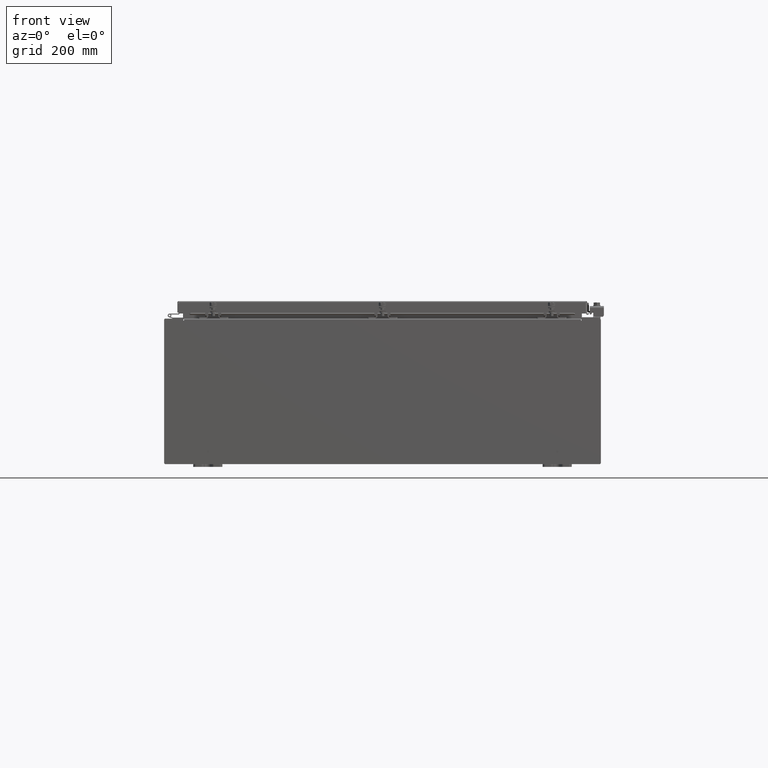
[diagram: clean part render]
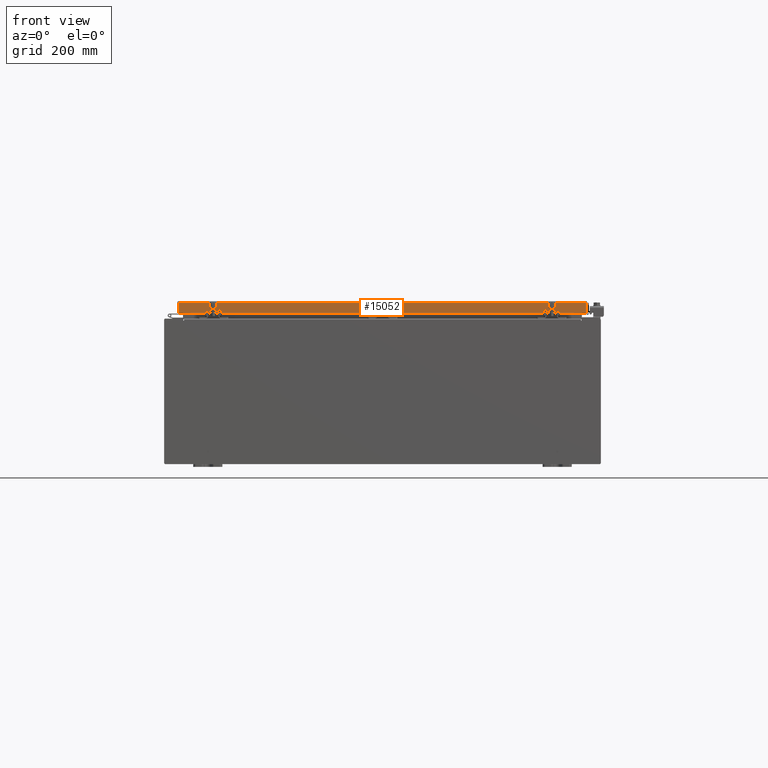
[diagram: same view with one face highlighted and labeled with its STEP entity id]
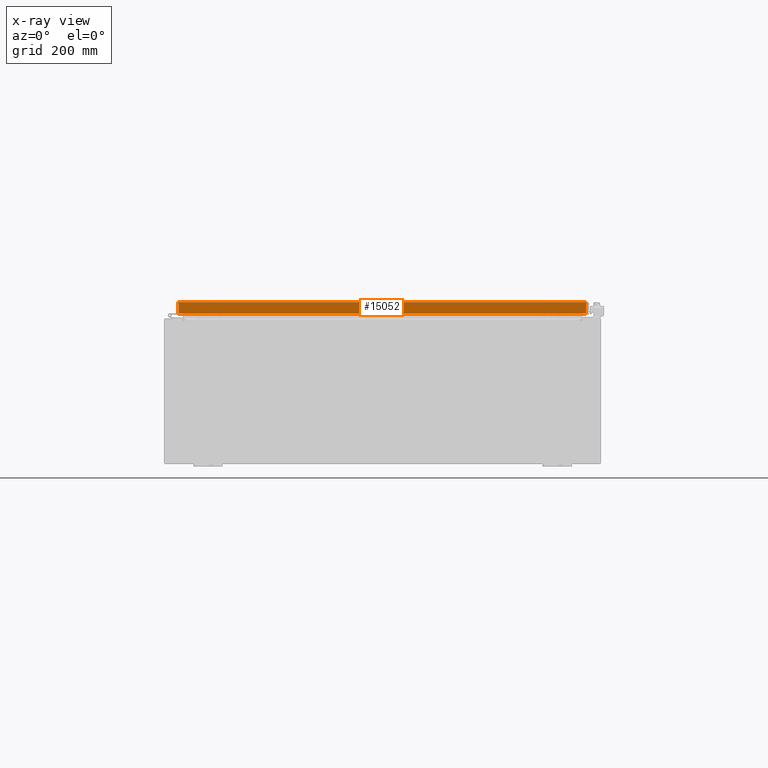
[diagram: x-ray of the same camera — body ghosted, the highlighted face saturated]
A machine part, front view. The second image highlights one B-rep face of the part: STEP entity #15052.
The next image is the same camera in x-ray: the body ghosted, the highlighted face saturated — about 0% of this face is hidden behind the body in this view.
In plain terms, the highlighted planar face has unit normal (-0, 1, -0).
Its self-contained STEP definition (entity closure, byte-faithful):
#221 = DIRECTION ( 'NONE',  ( -0.0000000000000000000, -2.818880942772360100E-015, -1.000000000000000000 ) ) ;
#792 = VERTEX_POINT ( 'NONE', #42900 ) ;
#847 = CARTESIAN_POINT ( 'NONE',  ( 13.98915786437626400, -17.09400000000000100, -0.07469999999999978000 ) ) ;
#927 = EDGE_CURVE ( 'NONE', #14699, #9109, #34592, .T. ) ;
#960 = DIRECTION ( 'NONE',  ( -1.000000000000000000, 4.379057701015054300E-047, 1.212817869044015600E-016 ) ) ;
#999 = ORIENTED_EDGE ( 'NONE', *, *, #23475, .F. ) ;
#1059 = CARTESIAN_POINT ( 'NONE',  ( 14.07799999999999400, -17.09400000000000100, -0.8499999999999996400 ) ) ;
#1166 = LINE ( 'NONE', #12953, #17853 ) ;
#1705 = EDGE_LOOP ( 'NONE', ( #42838, #20689, #4385, #42897, #999, #6655 ) ) ;
#2466 = DIRECTION ( 'NONE',  ( 1.000000000000000000, 3.418789178101959700E-031, -9.318824769679573900E-046 ) ) ;
#2714 = AXIS2_PLACEMENT_3D ( 'NONE', #36402, #35882, #35831 ) ;
#3606 = EDGE_CURVE ( 'NONE', #9109, #12663, #13993, .T. ) ;
#4385 = ORIENTED_EDGE ( 'NONE', *, *, #17585, .F. ) ;
#4687 = CARTESIAN_POINT ( 'NONE',  ( 14.07799999999999400, -17.09400000000000100, -0.08770000000000007000 ) ) ;
#5605 = CARTESIAN_POINT ( 'NONE',  ( -13.98915786437627600, -17.09400000000000100, 4.844676449176230700E-014 ) ) ;
#5662 = DIRECTION ( 'NONE',  ( 0.0000000000000000000, -2.818880942772360100E-015, -1.000000000000000000 ) ) ;
#5900 = LINE ( 'NONE', #5605, #22584 ) ;
#6655 = ORIENTED_EDGE ( 'NONE', *, *, #3606, .F. ) ;
#7539 = CARTESIAN_POINT ( 'NONE',  ( -13.98915786437627800, -17.09400000000000100, -0.08770000000000007000 ) ) ;
#7948 = VECTOR ( 'NONE', #2466, 39.37007874015748100 ) ;
#9109 = VERTEX_POINT ( 'NONE', #39069 ) ;
#9245 = LINE ( 'NONE', #1059, #35910 ) ;
#9818 = VERTEX_POINT ( 'NONE', #24240 ) ;
#9989 = FACE_OUTER_BOUND ( 'NONE', #1705, .T. ) ;
#12663 = VERTEX_POINT ( 'NONE', #21958 ) ;
#12953 = CARTESIAN_POINT ( 'NONE',  ( 13.23915786437626000, -17.09399999999999800, -0.8500000000000006400 ) ) ;
#13993 = LINE ( 'NONE', #847, #39569 ) ;
#14699 = VERTEX_POINT ( 'NONE', #7539 ) ;
#14773 = EDGE_CURVE ( 'NONE', #14699, #792, #5900, .T. ) ;
#15052 = ADVANCED_FACE ( 'NONE', ( #9989 ), #37659, .F. ) ;
#17145 = LINE ( 'NONE', #38547, #34873 ) ;
#17585 = EDGE_CURVE ( 'NONE', #9818, #792, #9245, .T. ) ;
#17853 = VECTOR ( 'NONE', #19665, 39.37007874015748100 ) ;
#19665 = DIRECTION ( 'NONE',  ( -1.000000000000000000, 0.0000000000000000000, 0.0000000000000000000 ) ) ;
#20689 = ORIENTED_EDGE ( 'NONE', *, *, #14773, .T. ) ;
#21958 = CARTESIAN_POINT ( 'NONE',  ( 13.98915786437626400, -17.09400000000000100, -0.8499999999999996400 ) ) ;
#22584 = VECTOR ( 'NONE', #5662, 39.37007874015748100 ) ;
#23475 = EDGE_CURVE ( 'NONE', #12663, #32418, #17145, .T. ) ;
#24240 = CARTESIAN_POINT ( 'NONE',  ( -13.23915786437627800, -17.09399999999999800, -0.8500000000000006400 ) ) ;
#25281 = DIRECTION ( 'NONE',  ( -1.000000000000000000, 4.379057701015054300E-047, 1.212817869044015600E-016 ) ) ;
#28753 = EDGE_CURVE ( 'NONE', #32418, #9818, #1166, .T. ) ;
#32418 = VERTEX_POINT ( 'NONE', #34599 ) ;
#34592 = LINE ( 'NONE', #4687, #7948 ) ;
#34599 = CARTESIAN_POINT ( 'NONE',  ( 13.23915786437626000, -17.09399999999999800, -0.8500000000000006400 ) ) ;
#34873 = VECTOR ( 'NONE', #25281, 39.37007874015748100 ) ;
#35831 = DIRECTION ( 'NONE',  ( 0.0000000000000000000, 2.818880942772360100E-015, 1.000000000000000000 ) ) ;
#35882 = DIRECTION ( 'NONE',  ( -3.418789178101958800E-031, 1.000000000000000000, -2.818880942772360100E-015 ) ) ;
#35910 = VECTOR ( 'NONE', #960, 39.37007874015748100 ) ;
#36402 = CARTESIAN_POINT ( 'NONE',  ( 5.844078221047488100E-030, -17.09400000000000100, 4.844676449176230700E-014 ) ) ;
#37659 = PLANE ( 'NONE',  #2714 ) ;
#38547 = CARTESIAN_POINT ( 'NONE',  ( 14.07799999999999400, -17.09400000000000100, -0.8499999999999996400 ) ) ;
#39069 = CARTESIAN_POINT ( 'NONE',  ( 13.98915786437626500, -17.09400000000000100, -0.08770000000000007000 ) ) ;
#39569 = VECTOR ( 'NONE', #221, 39.37007874015748100 ) ;
#42838 = ORIENTED_EDGE ( 'NONE', *, *, #927, .F. ) ;
#42897 = ORIENTED_EDGE ( 'NONE', *, *, #28753, .F. ) ;
#42900 = CARTESIAN_POINT ( 'NONE',  ( -13.98915786437627800, -17.09400000000000100, -0.8499999999999963100 ) ) ;